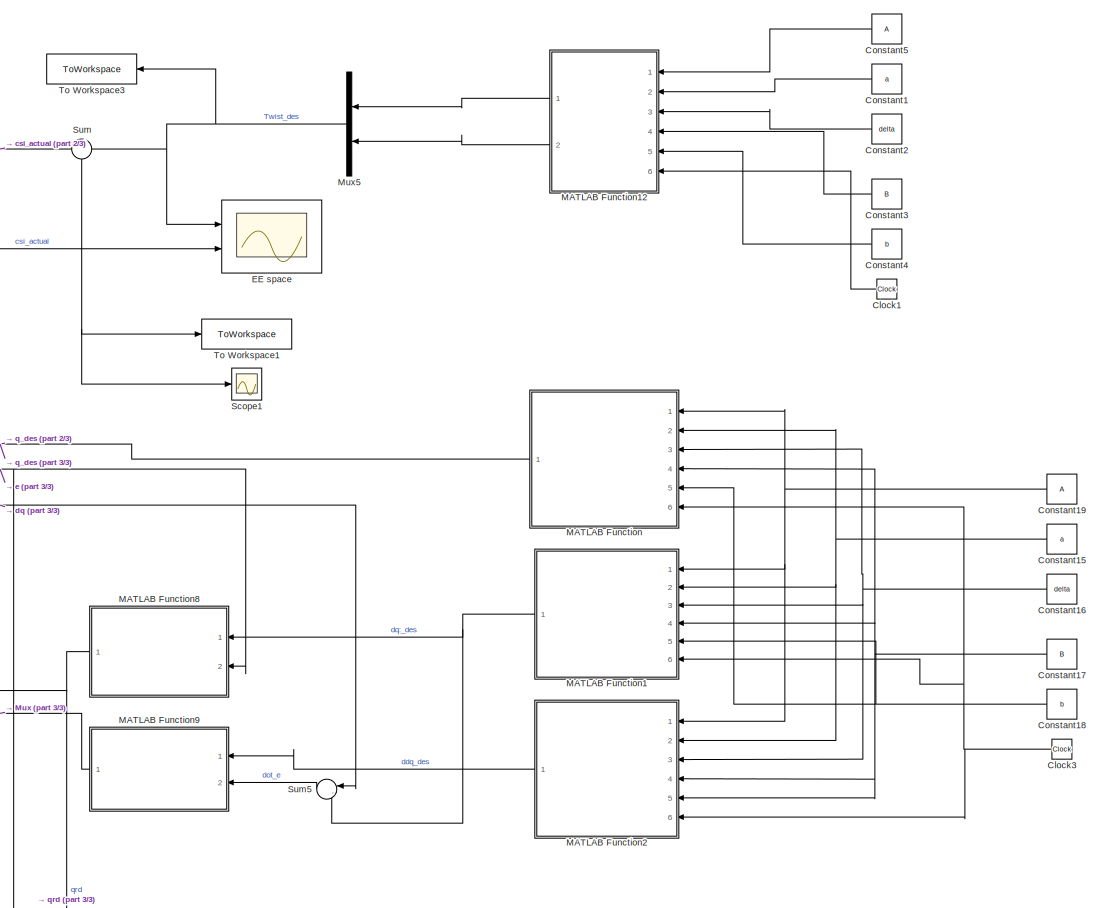
[diagram: root canvas - part 1/3, right side, full height]
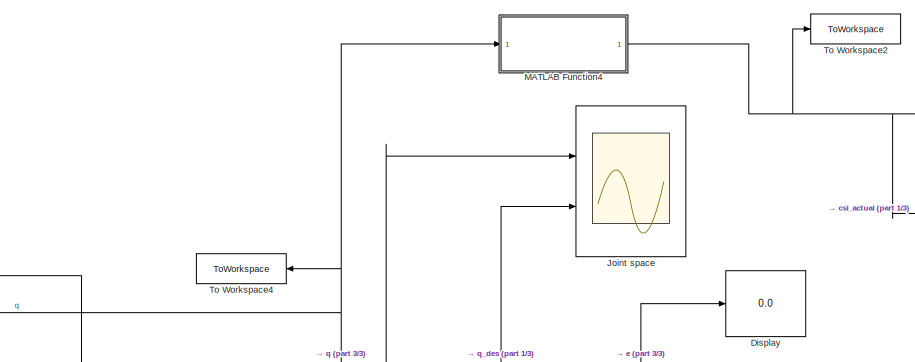
[diagram: root canvas - part 2/3, top center region]
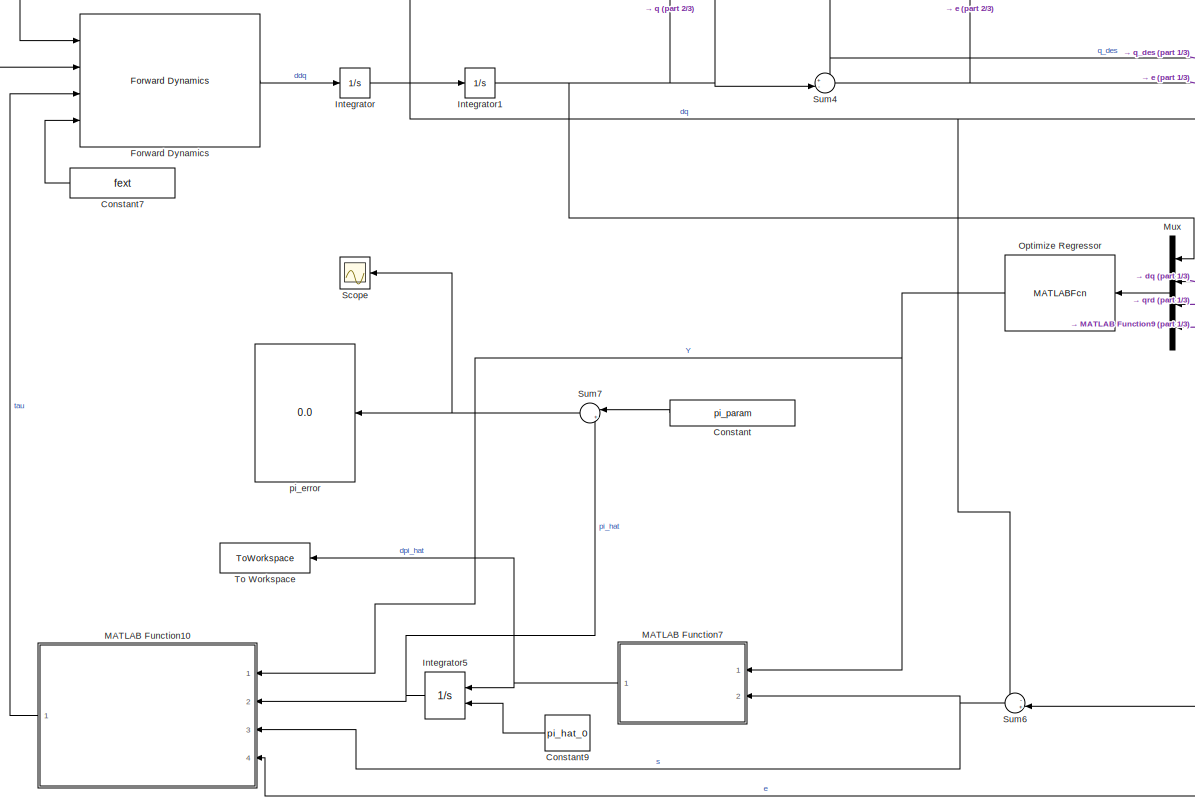
[diagram: root canvas - part 3/3, middle left region]
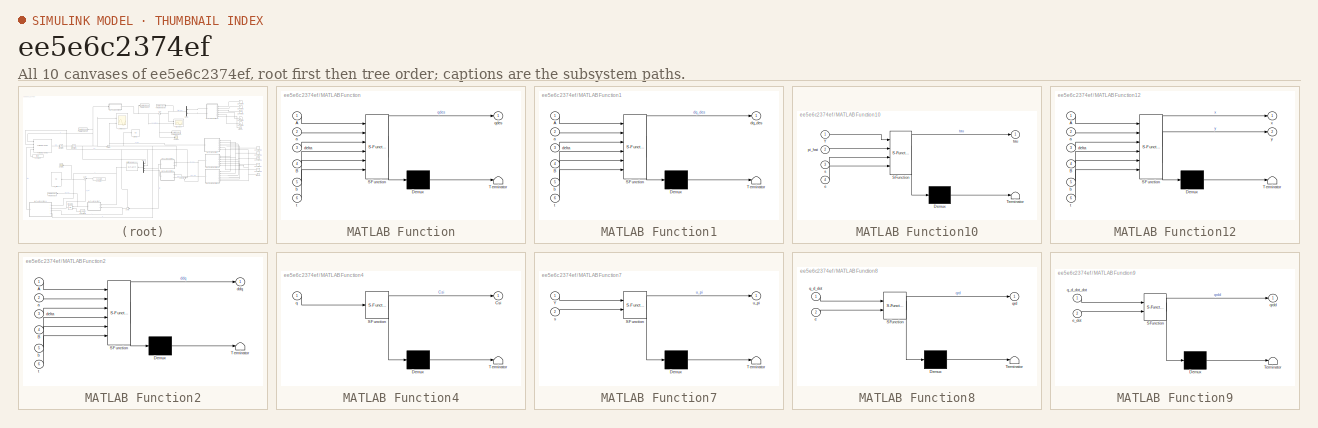
[diagram: thumbnail index - all 10 canvases of the model, root first then tree order]
MODEL slx_ee5e6c2374ef
KIND model
CONFIG AbsTol = auto
CONFIG EnableMultiTasking = off
CONFIG FixedStep = 1e-2
CONFIG MaxStep = auto
CONFIG MinStep = auto
CONFIG RelTol = 1e-3
CONFIG SampleTimeConstraint = Unconstrained
CONFIG Solver = VariableStepAuto
CONFIG SolverName = VariableStepAuto
CONFIG StartTime = 0.0
CONFIG StopTime = 60
BLOCK [Clock] Clock1
BLOCK [Clock] Clock3
BLOCK [Constant] Constant
  Value = pi_param
BLOCK [Constant] Constant1
  Value = a
BLOCK [Constant] Constant15
  Value = a
BLOCK [Constant] Constant16
  Value = delta
BLOCK [Constant] Constant17
  Value = B
BLOCK [Constant] Constant18
  Value = b
BLOCK [Constant] Constant19
  Value = A
BLOCK [Constant] Constant2
  Value = delta
BLOCK [Constant] Constant3
  Value = B
BLOCK [Constant] Constant4
  Value = b
BLOCK [Constant] Constant5
  Value = A
BLOCK [Constant] Constant7
  Value = fext
BLOCK [Constant] Constant9
  Value = pi_hat_0
BLOCK [Display] Display
  Decimation = 1
  Ports = [1]
BLOCK [Scope] EE space
  Floating = off
  NumInputPorts = 2
  Ports = [2]
  ScopeSpecificationString = Simulink.scopes.TimeScopeBlockCfg('CurrentConfiguration', extmgr.ConfigurationSet(extmgr.Configuration('Core','General UI',true,'FigureColor',[1 1 1]),extmgr.Configuration('Core','Source UI',true),extmgr.Configuration('Sources','WiredSimulink',true,'DataLoggingVariableName','ScopeData1'),extmgr.Configuration('Visuals','Time Domain',true,'SerializedDisplays',{struct('MinYLimReal','-1.27737','MaxYLi...<+1950ch>
BLOCK [Reference] Forward Dynamics  REF=robotmaniplib/Forward Dynamics
  Ports = [4, 1]
  SourceBlock = robotmaniplib/Forward Dynamics
  SourceProductBaseCode = RO
  SourceProductName = Robotics System Toolbox
  SourceType = Forward Dynamics
BLOCK [Integrator] Integrator
  Ports = [1, 1]
BLOCK [Integrator] Integrator1
  InitialCondition = [1.3,4]'
  Ports = [1, 1]
BLOCK [Integrator] Integrator5
  InitialConditionSource = external
  Ports = [2, 1]
BLOCK [Scope] Joint space
  Floating = off
  NumInputPorts = 2
  Ports = [2]
  ScopeSpecificationString = Simulink.scopes.TimeScopeBlockCfg('CurrentConfiguration', extmgr.ConfigurationSet(extmgr.Configuration('Core','General UI',true,'FigureColor',[1 1 1]),extmgr.Configuration('Core','Source UI',true),extmgr.Configuration('Sources','WiredSimulink',true,'DataLoggingVariableName','ScopeData1'),extmgr.Configuration('Visuals','Time Domain',true,'SerializedDisplays',{struct('MinYLimReal','-5.65986','MaxYLi...<+1904ch>
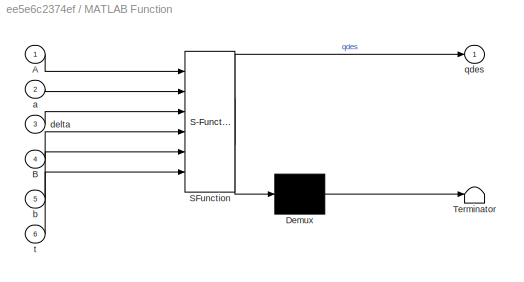
BLOCK [SubSystem] MATLAB Function
  ErrorFcn = Stateflow.Translate.translate
  PermitHierarchicalResolution = ExplicitOnly
  Ports = [6, 1]
  RequestExecContextInheritance = off
  SFBlockType = MATLAB Function
  TreatAsAtomicUnit = on
BLOCK [Demux] MATLAB Function/ Demux 
  Outputs = 1
  Ports = [1, 1]
BLOCK [S-Function] MATLAB Function/ SFunction 
  EnableBusSupport = on
  FunctionName = sf_sfun
  PortCounts = [6 2]
  Ports = [6, 2]
  SFcnIsStateOwnerBlock = off
  SFunctionDeploymentMode = off
  Tag = Stateflow S-Function 2
BLOCK [Terminator] MATLAB Function/ Terminator 
BLOCK [Inport] MATLAB Function/A
  IconDisplay = Port number
BLOCK [Inport] MATLAB Function/B
  IconDisplay = Port number
  Port = 4
BLOCK [Inport] MATLAB Function/a
  IconDisplay = Port number
  Port = 2
BLOCK [Inport] MATLAB Function/b
  IconDisplay = Port number
  Port = 5
BLOCK [Inport] MATLAB Function/delta
  IconDisplay = Port number
  Port = 3
BLOCK [Outport] MATLAB Function/qdes
  IconDisplay = Port number
BLOCK [Inport] MATLAB Function/t
  IconDisplay = Port number
  Port = 6
BLOCK [SubSystem] MATLAB Function1
  ErrorFcn = Stateflow.Translate.translate
  PermitHierarchicalResolution = ExplicitOnly
  Ports = [6, 1]
  RequestExecContextInheritance = off
  SFBlockType = MATLAB Function
  TreatAsAtomicUnit = on
BLOCK [Demux] MATLAB Function1/ Demux 
  Outputs = 1
  Ports = [1, 1]
BLOCK [S-Function] MATLAB Function1/ SFunction 
  EnableBusSupport = on
  FunctionName = sf_sfun
  PortCounts = [6 2]
  Ports = [6, 2]
  SFcnIsStateOwnerBlock = off
  SFunctionDeploymentMode = off
  Tag = Stateflow S-Function 1
BLOCK [Terminator] MATLAB Function1/ Terminator 
BLOCK [Inport] MATLAB Function1/A
  IconDisplay = Port number
BLOCK [Inport] MATLAB Function1/B
  IconDisplay = Port number
  Port = 4
BLOCK [Inport] MATLAB Function1/a
  IconDisplay = Port number
  Port = 2
BLOCK [Inport] MATLAB Function1/b
  IconDisplay = Port number
  Port = 5
BLOCK [Inport] MATLAB Function1/delta
  IconDisplay = Port number
  Port = 3
BLOCK [Outport] MATLAB Function1/dq_des
  IconDisplay = Port number
BLOCK [Inport] MATLAB Function1/t
  IconDisplay = Port number
  Port = 6
BLOCK [SubSystem] MATLAB Function10
  ErrorFcn = Stateflow.Translate.translate
  PermitHierarchicalResolution = ExplicitOnly
  Ports = [4, 1]
  RequestExecContextInheritance = off
  SFBlockType = MATLAB Function
  TreatAsAtomicUnit = on
BLOCK [Demux] MATLAB Function10/ Demux 
  Outputs = 1
  Ports = [1, 1]
BLOCK [S-Function] MATLAB Function10/ SFunction 
  EnableBusSupport = on
  FunctionName = sf_sfun
  PortCounts = [4 2]
  Ports = [4, 2]
  SFcnIsStateOwnerBlock = off
  SFunctionDeploymentMode = off
  Tag = Stateflow S-Function 17
BLOCK [Terminator] MATLAB Function10/ Terminator 
BLOCK [Inport] MATLAB Function10/Y
  IconDisplay = Port number
BLOCK [Inport] MATLAB Function10/e
  IconDisplay = Port number
  Port = 4
BLOCK [Inport] MATLAB Function10/pi_hat
  IconDisplay = Port number
  Port = 2
BLOCK [Inport] MATLAB Function10/s
  IconDisplay = Port number
  Port = 3
BLOCK [Outport] MATLAB Function10/tau
  IconDisplay = Port number
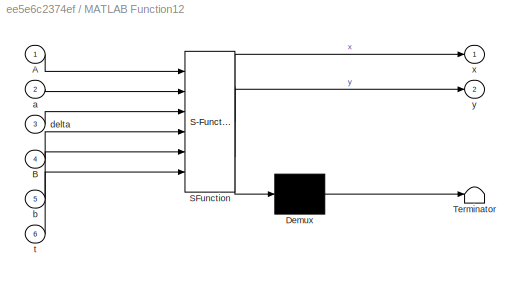
BLOCK [SubSystem] MATLAB Function12
  ErrorFcn = Stateflow.Translate.translate
  PermitHierarchicalResolution = ExplicitOnly
  Ports = [6, 2]
  RequestExecContextInheritance = off
  SFBlockType = MATLAB Function
  TreatAsAtomicUnit = on
BLOCK [Demux] MATLAB Function12/ Demux 
  Outputs = 1
  Ports = [1, 1]
BLOCK [S-Function] MATLAB Function12/ SFunction 
  EnableBusSupport = on
  FunctionName = sf_sfun
  PortCounts = [6 3]
  Ports = [6, 3]
  SFcnIsStateOwnerBlock = off
  SFunctionDeploymentMode = off
  Tag = Stateflow S-Function 8
BLOCK [Terminator] MATLAB Function12/ Terminator 
BLOCK [Inport] MATLAB Function12/A
  IconDisplay = Port number
BLOCK [Inport] MATLAB Function12/B
  IconDisplay = Port number
  Port = 4
BLOCK [Inport] MATLAB Function12/a
  IconDisplay = Port number
  Port = 2
BLOCK [Inport] MATLAB Function12/b
  IconDisplay = Port number
  Port = 5
BLOCK [Inport] MATLAB Function12/delta
  IconDisplay = Port number
  Port = 3
BLOCK [Inport] MATLAB Function12/t
  IconDisplay = Port number
  Port = 6
BLOCK [Outport] MATLAB Function12/x
  IconDisplay = Port number
BLOCK [Outport] MATLAB Function12/y
  IconDisplay = Port number
  Port = 2
BLOCK [SubSystem] MATLAB Function2
  ErrorFcn = Stateflow.Translate.translate
  PermitHierarchicalResolution = ExplicitOnly
  Ports = [6, 1]
  RequestExecContextInheritance = off
  SFBlockType = MATLAB Function
  TreatAsAtomicUnit = on
BLOCK [Demux] MATLAB Function2/ Demux 
  Outputs = 1
  Ports = [1, 1]
BLOCK [S-Function] MATLAB Function2/ SFunction 
  EnableBusSupport = on
  FunctionName = sf_sfun
  PortCounts = [6 2]
  Ports = [6, 2]
  SFcnIsStateOwnerBlock = off
  SFunctionDeploymentMode = off
  Tag = Stateflow S-Function 3
BLOCK [Terminator] MATLAB Function2/ Terminator 
BLOCK [Inport] MATLAB Function2/A
  IconDisplay = Port number
BLOCK [Inport] MATLAB Function2/B
  IconDisplay = Port number
  Port = 4
BLOCK [Inport] MATLAB Function2/a
  IconDisplay = Port number
  Port = 2
BLOCK [Inport] MATLAB Function2/b
  IconDisplay = Port number
  Port = 5
BLOCK [Outport] MATLAB Function2/ddq
  IconDisplay = Port number
BLOCK [Inport] MATLAB Function2/delta
  IconDisplay = Port number
  Port = 3
BLOCK [Inport] MATLAB Function2/t
  IconDisplay = Port number
  Port = 6
BLOCK [SubSystem] MATLAB Function4
  ErrorFcn = Stateflow.Translate.translate
  PermitHierarchicalResolution = ExplicitOnly
  Ports = [1, 1]
  RequestExecContextInheritance = off
  SFBlockType = MATLAB Function
  TreatAsAtomicUnit = on
BLOCK [Demux] MATLAB Function4/ Demux 
  Outputs = 1
  Ports = [1, 1]
BLOCK [S-Function] MATLAB Function4/ SFunction 
  EnableBusSupport = on
  FunctionName = sf_sfun
  PortCounts = [1 2]
  Ports = [1, 2]
  SFcnIsStateOwnerBlock = off
  SFunctionDeploymentMode = off
  Tag = Stateflow S-Function 13
BLOCK [Terminator] MATLAB Function4/ Terminator 
BLOCK [Outport] MATLAB Function4/Csi
  IconDisplay = Port number
BLOCK [Inport] MATLAB Function4/q
  IconDisplay = Port number
BLOCK [SubSystem] MATLAB Function7
  ErrorFcn = Stateflow.Translate.translate
  PermitHierarchicalResolution = ExplicitOnly
  Ports = [2, 1]
  RequestExecContextInheritance = off
  SFBlockType = MATLAB Function
  TreatAsAtomicUnit = on
BLOCK [Demux] MATLAB Function7/ Demux 
  Outputs = 1
  Ports = [1, 1]
BLOCK [S-Function] MATLAB Function7/ SFunction 
  EnableBusSupport = on
  FunctionName = sf_sfun
  PortCounts = [2 2]
  Ports = [2, 2]
  SFcnIsStateOwnerBlock = off
  SFunctionDeploymentMode = off
  Tag = Stateflow S-Function 21
BLOCK [Terminator] MATLAB Function7/ Terminator 
BLOCK [Inport] MATLAB Function7/Y
  IconDisplay = Port number
BLOCK [Inport] MATLAB Function7/s
  IconDisplay = Port number
  Port = 2
BLOCK [Outport] MATLAB Function7/u_pi
  IconDisplay = Port number
BLOCK [SubSystem] MATLAB Function8
  ErrorFcn = Stateflow.Translate.translate
  PermitHierarchicalResolution = ExplicitOnly
  Ports = [2, 1]
  RequestExecContextInheritance = off
  SFBlockType = MATLAB Function
  TreatAsAtomicUnit = on
BLOCK [Demux] MATLAB Function8/ Demux 
  Outputs = 1
  Ports = [1, 1]
BLOCK [S-Function] MATLAB Function8/ SFunction 
  EnableBusSupport = on
  FunctionName = sf_sfun
  PortCounts = [2 2]
  Ports = [2, 2]
  SFcnIsStateOwnerBlock = off
  SFunctionDeploymentMode = off
  Tag = Stateflow S-Function 22
BLOCK [Terminator] MATLAB Function8/ Terminator 
BLOCK [Inport] MATLAB Function8/e
  IconDisplay = Port number
  Port = 2
BLOCK [Inport] MATLAB Function8/q_d_dot
  IconDisplay = Port number
BLOCK [Outport] MATLAB Function8/qrd
  IconDisplay = Port number
BLOCK [SubSystem] MATLAB Function9
  ErrorFcn = Stateflow.Translate.translate
  PermitHierarchicalResolution = ExplicitOnly
  Ports = [2, 1]
  RequestExecContextInheritance = off
  SFBlockType = MATLAB Function
  TreatAsAtomicUnit = on
BLOCK [Demux] MATLAB Function9/ Demux 
  Outputs = 1
  Ports = [1, 1]
BLOCK [S-Function] MATLAB Function9/ SFunction 
  EnableBusSupport = on
  FunctionName = sf_sfun
  PortCounts = [2 2]
  Ports = [2, 2]
  SFcnIsStateOwnerBlock = off
  SFunctionDeploymentMode = off
  Tag = Stateflow S-Function 23
BLOCK [Terminator] MATLAB Function9/ Terminator 
BLOCK [Inport] MATLAB Function9/e_dot
  IconDisplay = Port number
  Port = 2
BLOCK [Inport] MATLAB Function9/q_d_dot_dot
  IconDisplay = Port number
BLOCK [Outport] MATLAB Function9/qrdd
  IconDisplay = Port number
BLOCK [Mux] Mux
  DisplayOption = bar
  Ports = [4, 1]
BLOCK [Mux] Mux5
  DisplayOption = bar
  Inputs = 2
  Ports = [2, 1]
BLOCK [MATLABFcn] Optimize Regressor 
  MATLABFcn = Regressor_DRR
  Output1D = off
  OutputDimensions = [2,6]
  Ports = [1, 1]
BLOCK [Scope] Scope
  Floating = off
  NumInputPorts = 1
  Ports = [1]
  ScopeSpecificationString = Simulink.scopes.TimeScopeBlockCfg('CurrentConfiguration', extmgr.ConfigurationSet(extmgr.Configuration('Core','General UI',true,'FigureColor',[1 1 1]),extmgr.Configuration('Core','Source UI',true),extmgr.Configuration('Sources','WiredSimulink',true,'DataLoggingVariableName','ScopeData1'),extmgr.Configuration('Visuals','Time Domain',true,'SerializedDisplays',{struct('MinYLimReal','-15.8381','MaxYLi...<+1923ch>
BLOCK [Scope] Scope1
  Floating = off
  NumInputPorts = 1
  Ports = [1]
  ScopeSpecificationString = Simulink.scopes.TimeScopeBlockCfg('CurrentConfiguration', extmgr.ConfigurationSet(extmgr.Configuration('Core','General UI',true),extmgr.Configuration('Core','Source UI',true),extmgr.Configuration('Sources','WiredSimulink',true,'DataLoggingVariableName','ScopeData2'),extmgr.Configuration('Visuals','Time Domain',true,'SerializedDisplays',{struct('MinYLimReal','-0.70557','MaxYLimReal','0.6314','YLabe...<+1425ch>
BLOCK [Sum] Sum
  IconShape = round
  InputSameDT = off
  Inputs = -+
  OutDataTypeStr = Inherit: Inherit via internal rule
  Ports = [2, 1]
  SaturateOnIntegerOverflow = off
BLOCK [Sum] Sum4
  IconShape = round
  InputSameDT = off
  Inputs = +-|
  OutDataTypeStr = Inherit: Inherit via internal rule
  Ports = [2, 1]
  SaturateOnIntegerOverflow = off
BLOCK [Sum] Sum5
  IconShape = round
  InputSameDT = off
  Inputs = |-+
  OutDataTypeStr = Inherit: Inherit via internal rule
  Ports = [2, 1]
  SaturateOnIntegerOverflow = off
BLOCK [Sum] Sum6
  IconShape = round
  InputSameDT = off
  Inputs = -+|
  OutDataTypeStr = Inherit: Inherit via internal rule
  Ports = [2, 1]
  SaturateOnIntegerOverflow = off
BLOCK [Sum] Sum7
  IconShape = round
  InputSameDT = off
  Inputs = |+-
  OutDataTypeStr = Inherit: Inherit via internal rule
  Ports = [2, 1]
  SaturateOnIntegerOverflow = off
BLOCK [ToWorkspace] To Workspace
  FixptAsFi = on
  MaxDataPoints = inf
  Ports = [1]
  SampleTime = -1
  SaveFormat = Timeseries
  VariableName = PI
BLOCK [ToWorkspace] To Workspace1
  FixptAsFi = on
  MaxDataPoints = inf
  Ports = [1]
  SampleTime = -1
  SaveFormat = Timeseries
  VariableName = e_out
BLOCK [ToWorkspace] To Workspace2
  FixptAsFi = on
  MaxDataPoints = inf
  Ports = [1]
  SampleTime = -1
  SaveFormat = Timeseries
  VariableName = xi_out
BLOCK [ToWorkspace] To Workspace3
  FixptAsFi = on
  MaxDataPoints = inf
  Ports = [1]
  SampleTime = -1
  SaveFormat = Timeseries
  VariableName = x_des
BLOCK [ToWorkspace] To Workspace4
  FixptAsFi = on
  MaxDataPoints = inf
  Ports = [1]
  SampleTime = -1
  SaveFormat = Timeseries
  VariableName = q_out
BLOCK [Display] pi_error
  Decimation = 1
  Ports = [1]
LINE Clock1:1 -> MATLAB Function12:6
NET Clock3:1 -> MATLAB Function1:6, MATLAB Function2:6, MATLAB Function:6
NET Constant15:1 -> MATLAB Function1:2, MATLAB Function2:2, MATLAB Function:2
NET Constant16:1 -> MATLAB Function1:3, MATLAB Function2:3, MATLAB Function:3
NET Constant17:1 -> MATLAB Function1:4, MATLAB Function2:4, MATLAB Function2:5, MATLAB Function:4
NET Constant18:1 -> MATLAB Function1:5, MATLAB Function:5
NET Constant19:1 -> MATLAB Function1:1, MATLAB Function2:1, MATLAB Function:1
LINE Constant1:1 -> MATLAB Function12:2
LINE Constant2:1 -> MATLAB Function12:3
LINE Constant3:1 -> MATLAB Function12:4
LINE Constant4:1 -> MATLAB Function12:5
LINE Constant5:1 -> MATLAB Function12:1
LINE Constant7:1 -> Forward Dynamics:4
LINE Constant9:1 -> Integrator5:2
LINE Constant:1 -> Sum7:1
LINE Forward Dynamics:1 -> Integrator:1
NET Integrator1:1 -> Forward Dynamics:1, Joint space:1, MATLAB Function4:1, Mux:1, Sum4:2, To Workspace4:1
NET Integrator5:1 -> MATLAB Function10:2, Sum7:2
NET Integrator:1 -> Forward Dynamics:2, Integrator1:1, Mux:2, Sum5:1, Sum6:1
LINE MATLAB Function10:1 -> Forward Dynamics:3
LINE MATLAB Function12:1 -> Mux5:1
LINE MATLAB Function12:2 -> Mux5:2
NET MATLAB Function1:1 -> MATLAB Function8:1, Sum5:2
LINE MATLAB Function2:1 -> MATLAB Function9:1
NET MATLAB Function4:1 -> EE space:2, Sum:1, To Workspace2:1
NET MATLAB Function7:1 -> Integrator5:1, To Workspace:1
NET MATLAB Function8:1 -> Mux:3, Sum6:2
LINE MATLAB Function9:1 -> Mux:4
NET MATLAB Function:1 -> Joint space:2, Sum4:1
NET Mux5:1 -> EE space:1, Sum:2, To Workspace3:1
LINE Mux:1 -> Optimize Regressor :1
NET Optimize Regressor :1 -> MATLAB Function10:1, MATLAB Function7:1
NET Sum4:1 -> Display:1, MATLAB Function10:4, MATLAB Function8:2
LINE Sum5:1 -> MATLAB Function9:2
NET Sum6:1 -> MATLAB Function10:3, MATLAB Function7:2
NET Sum7:1 -> Scope:1, pi_error:1
NET Sum:1 -> Scope1:1, To Workspace1:1
note: NET lines group one-source signal fan-out (src -> all destinations, sorted); 1:1 wires keep LINE
CHART MATLAB Function1 states=1 transitions=1
  STATE_LABEL 'eML_blk_kernel()'
  STATE_LABEL 'SCRIPT:\nfunction dq_des = d_Lissajous(A,a,delta,B,b,t)\n\n\ndq1 = ((a*cos(delta + a*t)*sin(delta + a*t)*A^2 + b*cos(b*t)*sin(b*t)*B^2)*(1 - ((B^2*sin(b*t)^2)/2 + (A^2*sin(delta + a*t)^2)/2 - 1)^2)^(1/2) + ((a*cos(delta + a*t)*sin(delta + a*t)*A^2 + b*cos(b*t)*sin(b*t)*B^2)*((B^2*sin(b*t)^2)/2 + (A^2*sin(delta + a*t)^2)/2)*((B^2*sin(b*t)^2)/2 + (A^2*sin(delta + a*t)^2)/2 - 1))/(1 - ((A^2*sin(delta + a...<+638ch>'
CHART MATLAB Function states=1 transitions=1
  STATE_LABEL 'eML_blk_kernel()'
  STATE_LABEL 'SCRIPT:\nfunction qdes = Lissajou(A,a,delta,B,b,t)\n\nq1 = atan2(B*sin(b*t), A*sin(delta + a*t)) - atan2((4 - (A^2*sin(delta + a*t)^2 + B^2*sin(b*t)^2 - 2)^2)^(1/2)/2, (A^2*sin(delta + a*t)^2)/2 + (B^2*sin(b*t)^2)/2);\nq2 = atan2((4 - (A^2*sin(delta + a*t)^2 + B^2*sin(b*t)^2 - 2)^2)^(1/2)/2, (A^2*sin(delta + a*t)^2)/2 + (B^2*sin(b*t)^2)/2 - 1);\n\nqdes = [q1;q2];'
CHART MATLAB Function2 states=1 transitions=1
  STATE_LABEL 'eML_blk_kernel()'
  STATE_LABEL 'SCRIPT:\nfunction ddq = dd_Lissajous(A,a,delta,B,b,t)\n\nq1_ddot = (A*B*(a*sin(2*delta + 2*a*t)*A^2 + b*sin(2*b*t)*B^2)*(a*cos(delta + a*t)*sin(b*t) - b*sin(delta + a*t)*cos(b*t)))/(A^2*sin(delta + a*t)^2 + B^2*sin(b*t)^2)^2 - ((a*sin(2*delta + 2*a*t)*A^2 + b*sin(2*b*t)*B^2)*((a*sin(2*delta + 2*a*t)*A^2)/2 + (b*sin(2*b*t)*B^2)/2))/((A^2*sin(delta + a*t)^2 + B^2*sin(b*t)^2)*(4 - (A^2*sin(delta + a*t)^...<+1439ch>'
CHART MATLAB Function12 states=1 transitions=1
  STATE_LABEL 'eML_blk_kernel()'
  STATE_LABEL 'SCRIPT:\nfunction [x,y] = Lissajous(A,a,delta,B,b,t)\n\n\nx = A*sin(a*t+delta);\ny = B*sin(b*t);\n\n\nend'
CHART MATLAB Function4 states=1 transitions=1
  STATE_LABEL 'eML_blk_kernel()'
  STATE_LABEL "SCRIPT:\nfunction Csi  = Direct_Kinematics_RR(q)\n\n%INPUT: q(1) = q1;\n%       q(2) = q2;\n\n%OUTPUT: px = position along x axis\n%        py = position along y axis\n\n%Link's lenght\n\nl1 = 1;\nl2 = 1;\n\npx = l1 * cos(q(1)) + l2 * cos(q(1)+q(2));\npy = l1 * sin(q(1)) + l2 * sin(q(1)+q(2));\n\nCsi = [px; py];\nend"
CHART MATLAB Function10 states=1 transitions=1
  STATE_LABEL 'eML_blk_kernel()'
  STATE_LABEL 'SCRIPT:\nfunction tau = Back_Stepping_Control_Law(Y,pi_hat,s,e)\n\nKd = 10 * eye(2);\nKp = 7 * eye(2);\n\ntau = Y * pi_hat + Kd * s + Kp * e;\n\nend'
CHART MATLAB Function7 states=1 transitions=1
  STATE_LABEL 'eML_blk_kernel()'
  STATE_LABEL "SCRIPT:\nfunction u_pi = Update_Law(Y,s)\n\nR = 3*eye(2,6);\nu_pi = pinv(R).*(Y.')*s;\nend\n\n\n"
CHART MATLAB Function8 states=1 transitions=1
  STATE_LABEL 'eML_blk_kernel()'
  STATE_LABEL 'SCRIPT:\nfunction qrd = q_r_dot(q_d_dot,e)\n\nlambda = 5  * eye(2);\nqrd = q_d_dot + lambda * e;\n\nend\n\n'
CHART MATLAB Function9 states=1 transitions=1
  STATE_LABEL 'eML_blk_kernel()'
  STATE_LABEL 'SCRIPT:\nfunction qrdd = q_r_dot_dot(q_d_dot_dot,e_dot)\n\nlambda = 5 * eye(2);\nqrdd = q_d_dot_dot + lambda*e_dot;\n\nend\n\n'
